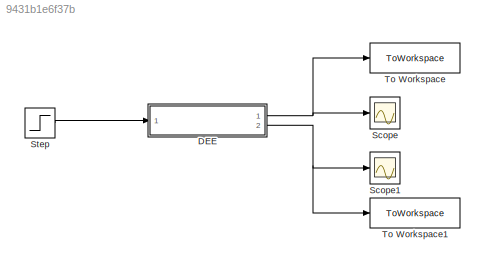
MODEL slx_9431b1e6f37b
KIND model
CONFIG AbsTol = auto
CONFIG EnableMultiTasking = off
CONFIG FixedStep = auto
CONFIG MaxStep = auto
CONFIG MinStep = auto
CONFIG RelTol = 1e-3
CONFIG SampleTimeConstraint = Unconstrained
CONFIG Solver = VariableStepAuto
CONFIG SolverName = VariableStepAuto
CONFIG StartTime = 0.0
CONFIG StopTime = 500.0
WORKSPACE source: MATLAB code (in-file)
WORKSPACE q = 20
WORKSPACE V = 1200
WORKSPACE Ti = 90
WORKSPACE cp = 0.8
WORKSPACE rho = 52
WORKSPACE dH = -500
WORKSPACE ca0 = 0.8
WORKSPACE T0 = 99
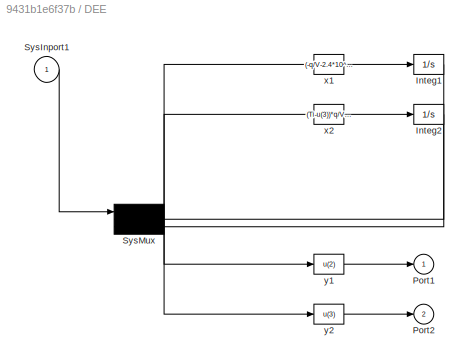
BLOCK [SubSystem] DEE
  OpenFcn = diffeqed
  Ports = [1, 2]
  RequestExecContextInheritance = off
BLOCK [Integrator] DEE/Integ1
  InitialCondition = ca0
  Ports = [1, 1]
BLOCK [Integrator] DEE/Integ2
  InitialCondition = T0
  Ports = [1, 1]
BLOCK [Outport] DEE/Port1
  IconDisplay = Port number
BLOCK [Outport] DEE/Port2
  IconDisplay = Port number
  Port = 2
BLOCK [Inport] DEE/SysInport1
  IconDisplay = Port number
BLOCK [Mux] DEE/SysMux
  Inputs = 3
  Ports = [3, 1]
BLOCK [Fcn] DEE/x1
  Expr = (-q/V-2.4*10^15*exp(-20000/(u(3)+459.67)))*u(2)+q*u(1)/V
BLOCK [Fcn] DEE/x2
  Expr = (Ti-u(3))*q/V - 2.4*10^15*exp(-20000/(u(3)+459.67))*u(2)*dH/(rho*cp)
BLOCK [Fcn] DEE/y1
  Expr = u(2)
BLOCK [Fcn] DEE/y2
  Expr = u(3)
BLOCK [Scope] Scope
  Floating = off
  NumInputPorts = 1
  Ports = [1]
  ScopeSpecificationString = Simulink.scopes.TimeScopeBlockCfg('CurrentConfiguration', extmgr.ConfigurationSet(extmgr.Configuration('Core','General UI',true),extmgr.Configuration('Core','Source UI',true),extmgr.Configuration('Sources','WiredSimulink',true),extmgr.Configuration('Visuals','Time Domain',true,'SerializedDisplays',{struct('MinYLimReal','-0.66576','MaxYLimReal','0.66758','YLabelReal','Ca','MinYLimMag','0.00000','Ma...<+2078ch>
BLOCK [Scope] Scope1
  Floating = off
  NumInputPorts = 1
  Ports = [1]
  ScopeSpecificationString = Simulink.scopes.TimeScopeBlockCfg('CurrentConfiguration', extmgr.ConfigurationSet(extmgr.Configuration('Core','General UI',true),extmgr.Configuration('Core','Source UI',true),extmgr.Configuration('Sources','WiredSimulink',true,'DataLoggingVariableName','ScopeData1'),extmgr.Configuration('Visuals','Time Domain',true,'SerializedDisplays',{struct('MinYLimReal','97.90728','MaxYLimReal','108.83449','YL...<+1450ch>
BLOCK [Step] Step
  After = 1.1*ca0
  Before = ca0
  SampleTime = 0
  Time = 5
BLOCK [ToWorkspace] To Workspace
  FixptAsFi = on
  MaxDataPoints = inf
  Ports = [1]
  SampleTime = -1
  SaveFormat = Timeseries
  VariableName = Ca
BLOCK [ToWorkspace] To Workspace1
  FixptAsFi = on
  MaxDataPoints = inf
  Ports = [1]
  SampleTime = -1
  SaveFormat = Timeseries
  VariableName = T
LINE DEE/Integ1:1 -> DEE/SysMux:2
LINE DEE/Integ2:1 -> DEE/SysMux:3
LINE DEE/SysInport1:1 -> DEE/SysMux:1
NET DEE/SysMux:1 -> DEE/x1:1, DEE/x2:1, DEE/y1:1, DEE/y2:1
LINE DEE/x1:1 -> DEE/Integ1:1
LINE DEE/x2:1 -> DEE/Integ2:1
LINE DEE/y1:1 -> DEE/Port1:1
LINE DEE/y2:1 -> DEE/Port2:1
NET DEE:1 -> Scope:1, To Workspace:1
NET DEE:2 -> Scope1:1, To Workspace1:1
LINE Step:1 -> DEE:1
note: NET lines group one-source signal fan-out (src -> all destinations, sorted); 1:1 wires keep LINE
